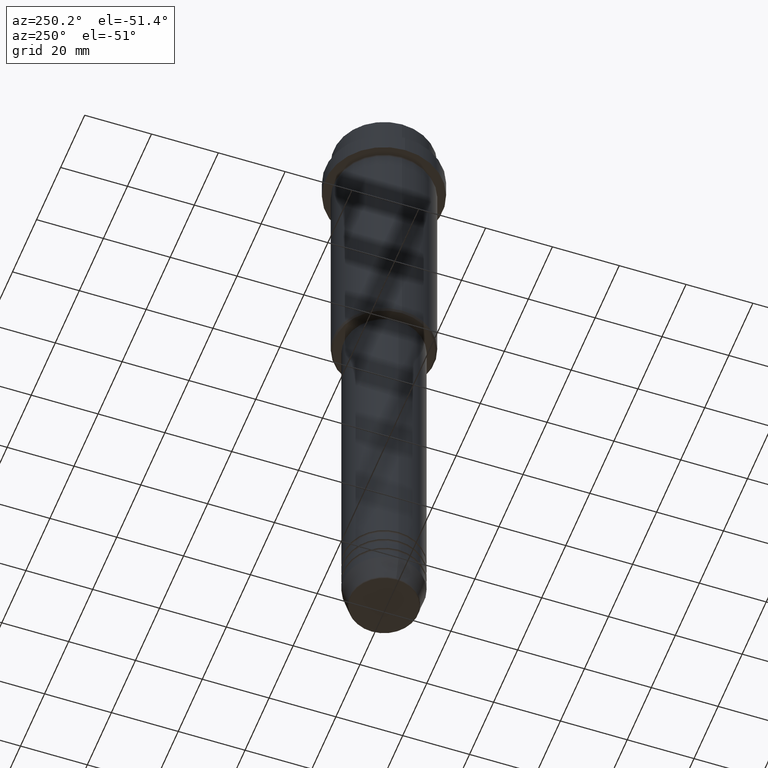
[diagram: clean part render]
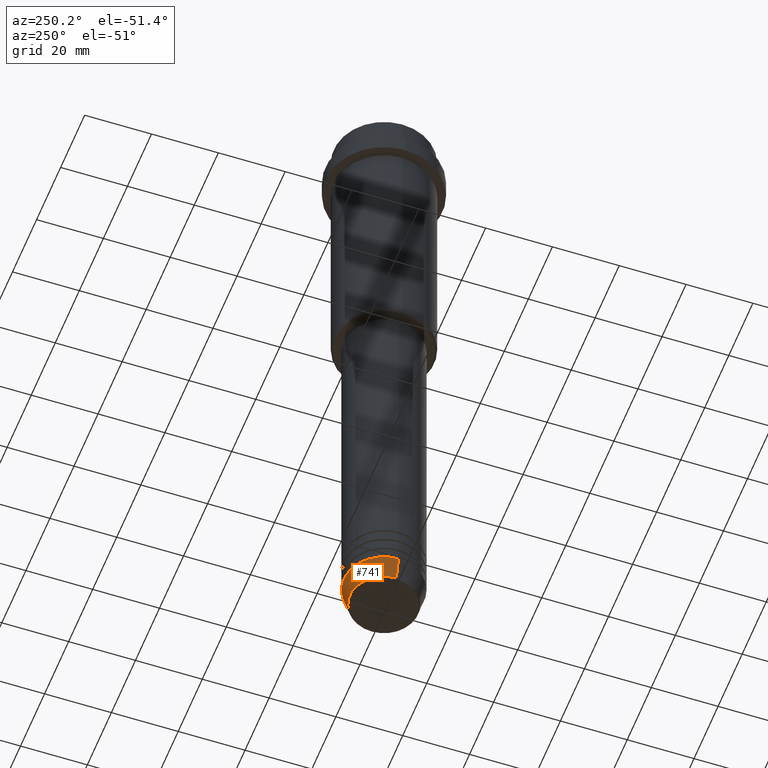
[diagram: same view with one face highlighted and labeled with its STEP entity id]
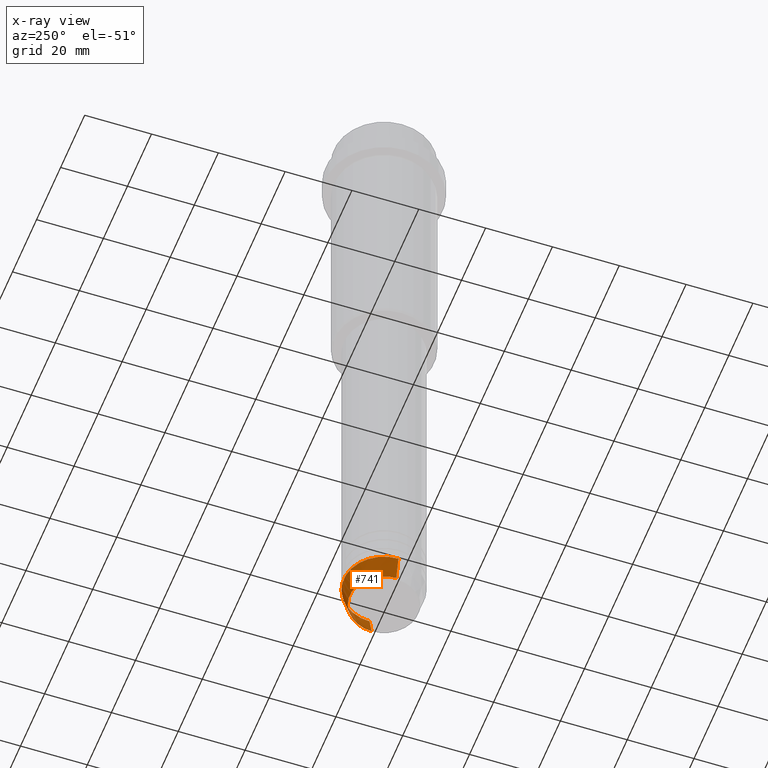
[diagram: x-ray of the same camera — body ghosted, the highlighted face saturated]
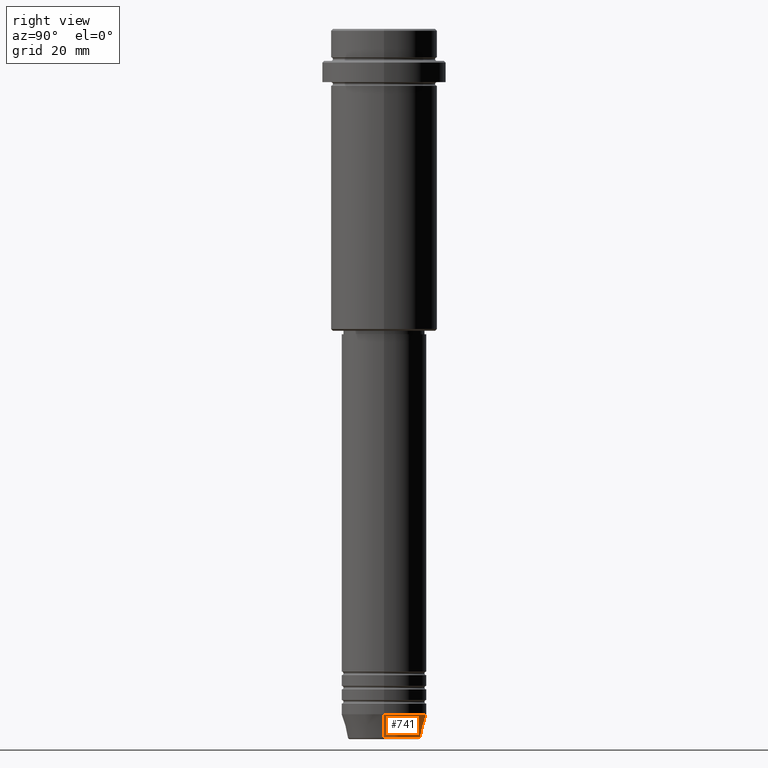
[diagram: same view with one face highlighted and labeled with its STEP entity id]
A machine part, auxiliary view. The second image highlights one B-rep face of the part: STEP entity #741.
The next image is the same camera in x-ray: the body ghosted, the highlighted face saturated — about 0% of this face is hidden behind the body in this view.
A second angle (right view) of the same face is appended — the face is thin or edge-on in the first view.
In plain terms, the highlighted conical surface has half-angle 15 deg.
Its self-contained STEP definition (entity closure, byte-faithful):
#56 = AXIS2_PLACEMENT_3D ( 'NONE', #610, #464, #239 ) ;
#109 = VECTOR ( 'NONE', #545, 1000.000000000000000 ) ;
#110 = VERTEX_POINT ( 'NONE', #1152 ) ;
#128 = CIRCLE ( 'NONE', #56, 10.22365507213719127 ) ;
#141 = VERTEX_POINT ( 'NONE', #1378 ) ;
#153 = DIRECTION ( 'NONE',  ( 1.000000000000000000, 0.000000000000000000, 0.000000000000000000 ) ) ;
#181 = EDGE_CURVE ( 'NONE', #141, #110, #795, .T. ) ;
#218 = DIRECTION ( 'NONE',  ( 1.000000000000000000, 0.000000000000000000, 0.000000000000000000 ) ) ;
#239 = DIRECTION ( 'NONE',  ( 1.000000000000000000, 0.000000000000000000, 0.000000000000000000 ) ) ;
#253 = DIRECTION ( 'NONE',  ( 0.2588190451025213501, 0.000000000000000000, 0.9659258262890680902 ) ) ;
#333 = CARTESIAN_POINT ( 'NONE',  ( -10.22365507213719127, 1.360806402472382744E-15, -199.6294095225512706 ) ) ;
#464 = DIRECTION ( 'NONE',  ( -0.000000000000000000, -0.000000000000000000, 1.000000000000000000 ) ) ;
#538 = LINE ( 'NONE', #1111, #109 ) ;
#545 = DIRECTION ( 'NONE',  ( -0.2588190451025213501, 3.169619151431772337E-17, 0.9659258262890680902 ) ) ;
#610 = CARTESIAN_POINT ( 'NONE',  ( 0.000000000000000000, 0.000000000000000000, -199.6294095225512706 ) ) ;
#684 = CARTESIAN_POINT ( 'NONE',  ( 0.000000000000000000, 0.000000000000000000, -193.0000000000000000 ) ) ;
#741 = ADVANCED_FACE ( 'NONE', ( #1184 ), #1029, .T. ) ;
#754 = AXIS2_PLACEMENT_3D ( 'NONE', #1320, #1094, #218 ) ;
#783 = EDGE_CURVE ( 'NONE', #141, #912, #128, .T. ) ;
#786 = ORIENTED_EDGE ( 'NONE', *, *, #181, .F. ) ;
#795 = LINE ( 'NONE', #1324, #1089 ) ;
#847 = ORIENTED_EDGE ( 'NONE', *, *, #1276, .T. ) ;
#862 = ORIENTED_EDGE ( 'NONE', *, *, #783, .T. ) ;
#874 = CIRCLE ( 'NONE', #966, 12.00000000000000000 ) ;
#876 = ORIENTED_EDGE ( 'NONE', *, *, #960, .F. ) ;
#912 = VERTEX_POINT ( 'NONE', #333 ) ;
#960 = EDGE_CURVE ( 'NONE', #110, #1214, #874, .T. ) ;
#966 = AXIS2_PLACEMENT_3D ( 'NONE', #684, #1105, #153 ) ;
#1029 = CONICAL_SURFACE ( 'NONE', #754, 12.00000000000000000, 0.2617993877991500740 ) ;
#1089 = VECTOR ( 'NONE', #253, 1000.000000000000000 ) ;
#1094 = DIRECTION ( 'NONE',  ( -0.000000000000000000, -0.000000000000000000, 1.000000000000000000 ) ) ;
#1105 = DIRECTION ( 'NONE',  ( -0.000000000000000000, -0.000000000000000000, 1.000000000000000000 ) ) ;
#1111 = CARTESIAN_POINT ( 'NONE',  ( -12.00000000000000000, 1.469576158976823947E-15, -193.0000000000000000 ) ) ;
#1152 = CARTESIAN_POINT ( 'NONE',  ( 12.00000000000000000, 0.000000000000000000, -193.0000000000000000 ) ) ;
#1184 = FACE_OUTER_BOUND ( 'NONE', #1217, .T. ) ;
#1214 = VERTEX_POINT ( 'NONE', #1409 ) ;
#1217 = EDGE_LOOP ( 'NONE', ( #862, #847, #876, #786 ) ) ;
#1276 = EDGE_CURVE ( 'NONE', #912, #1214, #538, .T. ) ;
#1320 = CARTESIAN_POINT ( 'NONE',  ( 0.000000000000000000, 0.000000000000000000, -193.0000000000000000 ) ) ;
#1324 = CARTESIAN_POINT ( 'NONE',  ( 12.00000000000000000, 0.000000000000000000, -193.0000000000000000 ) ) ;
#1378 = CARTESIAN_POINT ( 'NONE',  ( 10.22365507213719127, 0.000000000000000000, -199.6294095225512706 ) ) ;
#1409 = CARTESIAN_POINT ( 'NONE',  ( -12.00000000000000000, 1.469576158976823947E-15, -193.0000000000000000 ) ) ;